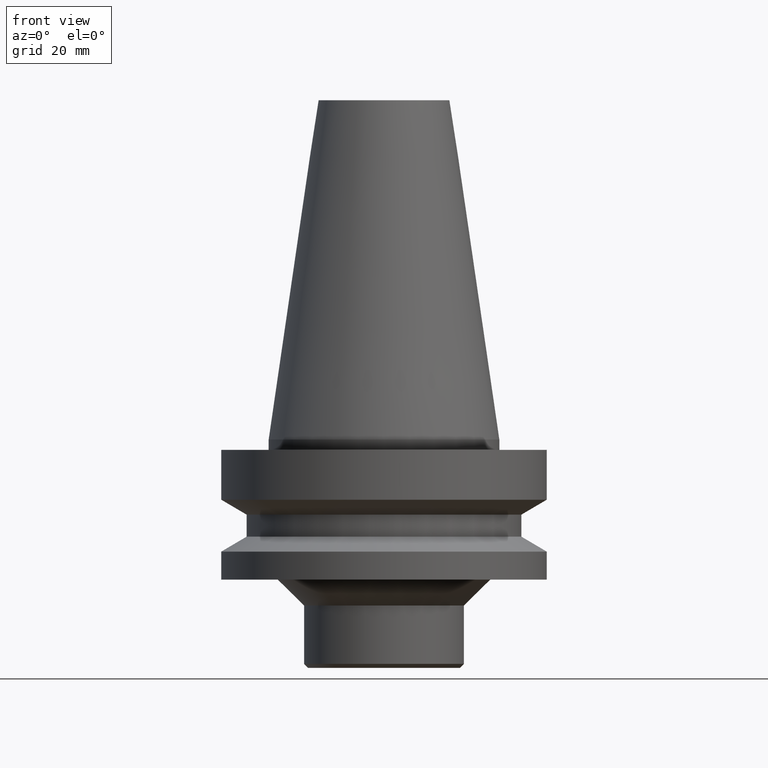
[diagram: clean part render]
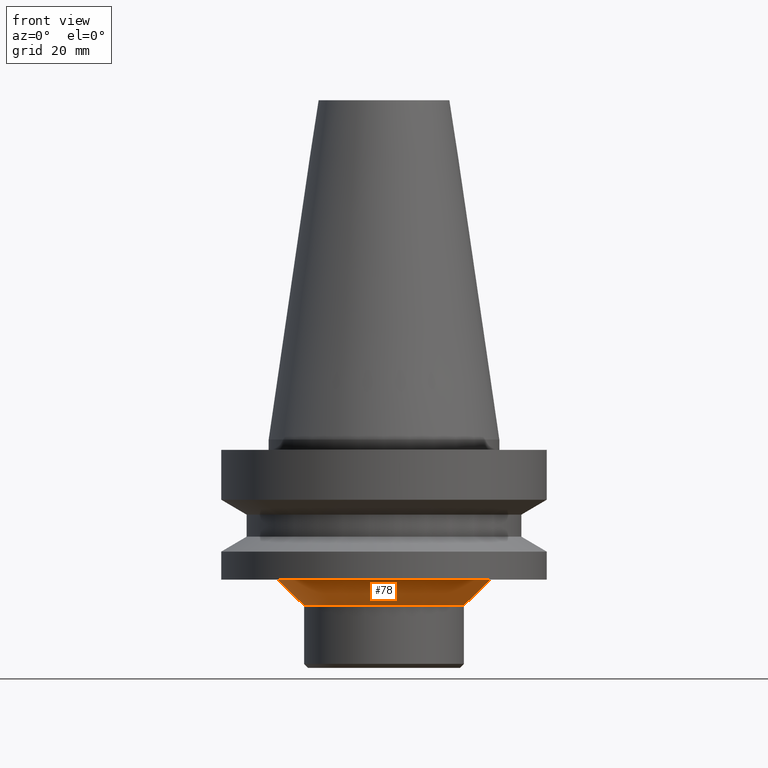
[diagram: same view with one face highlighted and labeled with its STEP entity id]
A machine part, front view. The second image highlights one B-rep face of the part: STEP entity #78.
In plain terms, the highlighted conical surface has half-angle 45 deg.
Its self-contained STEP definition (entity closure, byte-faithful):
#78=ADVANCED_FACE('',(#99,#100),#101,.T.);
#99=FACE_BOUND('',#139,.T.);
#100=FACE_BOUND('',#140,.T.);
#101=CONICAL_SURFACE('',#141,18.0,0.785398163397448);
#139=EDGE_LOOP('',(#185));
#140=EDGE_LOOP('',(#186));
#141=AXIS2_PLACEMENT_3D('',#187,#188,#189);
#185=ORIENTED_EDGE('',*,*,#242,.F.);
#186=ORIENTED_EDGE('',*,*,#241,.T.);
#187=CARTESIAN_POINT('',(1.80635402874235E-015,3.61270805748469E-015,-29.5));
#188=DIRECTION('',(-6.12323399573677E-017,-1.22464679914735E-016,1.0));
#189=DIRECTION('',(-1.23259516440783E-032,1.0,1.22464679914735E-016));
#241=EDGE_CURVE('',#257,#257,#258,.T.);
#242=EDGE_CURVE('',#259,#259,#260,.T.);
#257=VERTEX_POINT('',#283);
#258=CIRCLE('',#284,20.5);
#259=VERTEX_POINT('',#285);
#260=CIRCLE('',#286,15.5);
#283=CARTESIAN_POINT('',(1.65327317884893E-015,20.5,-27.0));
#284=AXIS2_PLACEMENT_3D('',#312,#313,#314);
#285=CARTESIAN_POINT('',(1.95943487863577E-015,15.5,-32.0));
#286=AXIS2_PLACEMENT_3D('',#315,#316,#317);
#312=CARTESIAN_POINT('',(1.65327317884893E-015,3.30654635769785E-015,-27.0));
#313=DIRECTION('',(6.12323399573677E-017,1.22464679914735E-016,-1.0));
#314=DIRECTION('',(-1.23259516440783E-032,1.0,1.22464679914735E-016));
#315=CARTESIAN_POINT('',(1.95943487863577E-015,3.91886975727153E-015,-32.0));
#316=DIRECTION('',(6.12323399573677E-017,1.22464679914735E-016,-1.0));
#317=DIRECTION('',(-1.23259516440783E-032,1.0,1.22464679914735E-016));